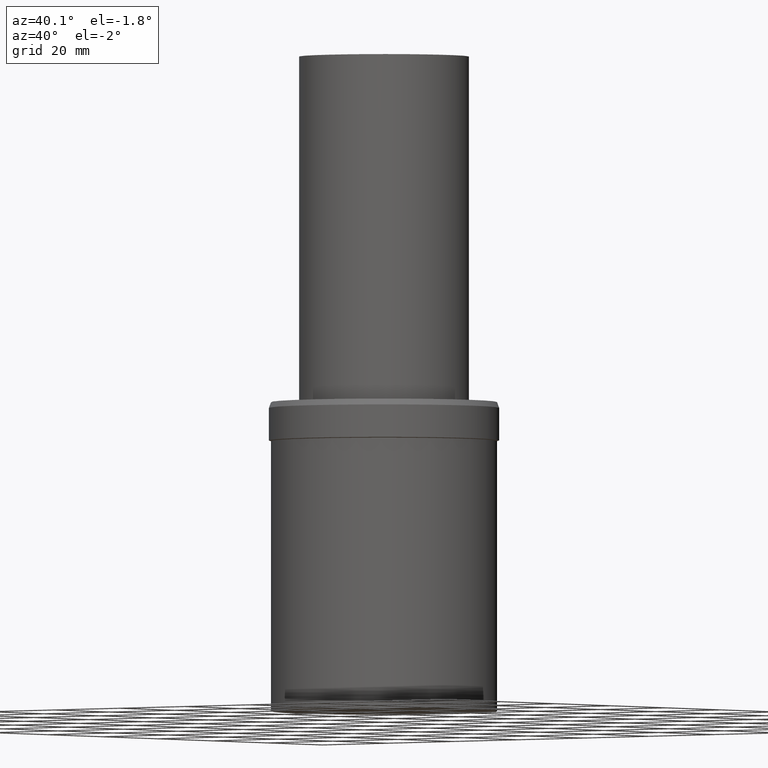
[diagram: clean part render]
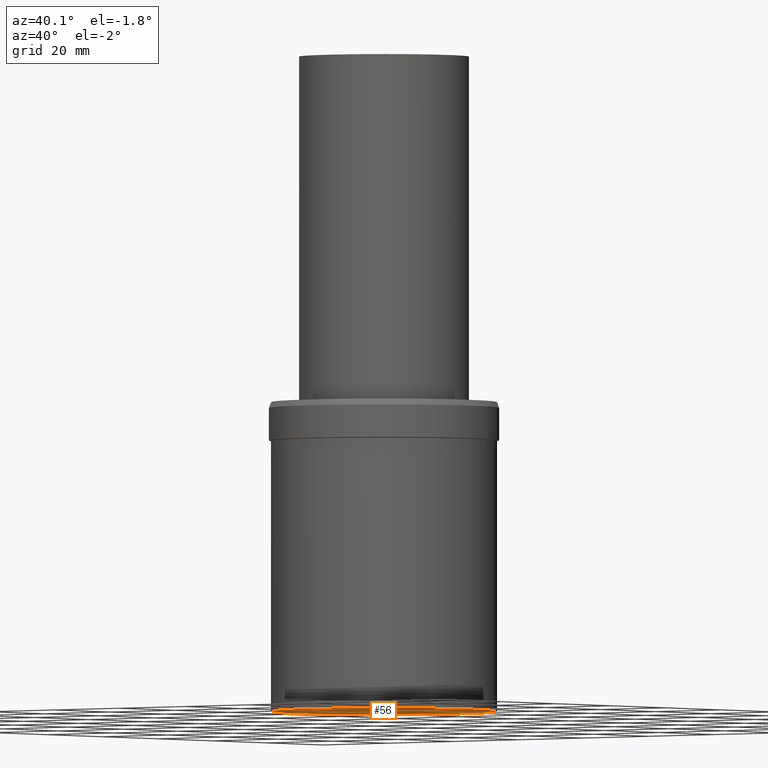
[diagram: same view with one face highlighted and labeled with its STEP entity id]
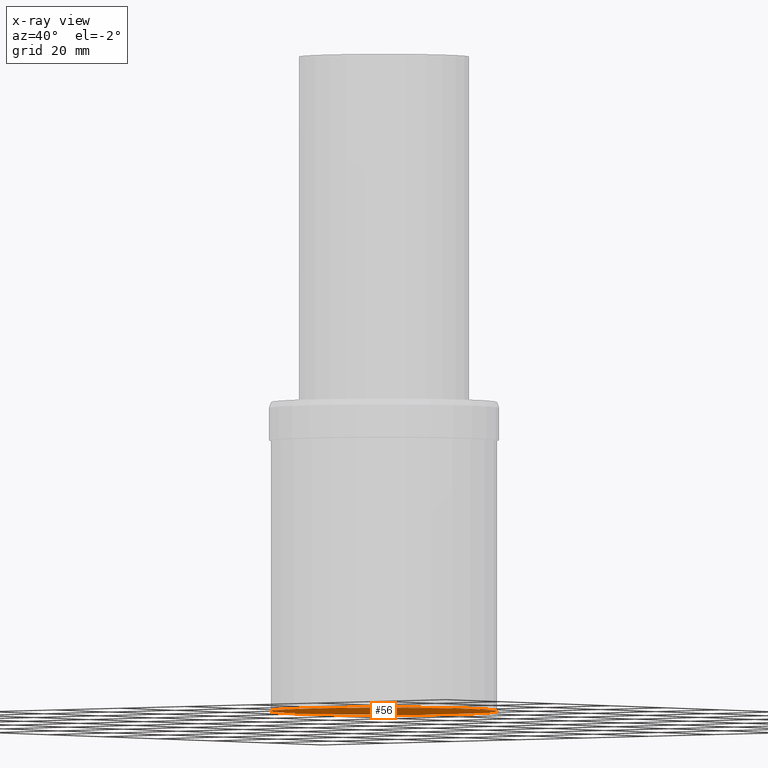
[diagram: x-ray of the same camera — body ghosted, the highlighted face saturated]
A machine part, auxiliary view. The second image highlights one B-rep face of the part: STEP entity #56.
The next image is the same camera in x-ray: the body ghosted, the highlighted face saturated — about 0% of this face is hidden behind the body in this view.
In plain terms, the highlighted planar face has unit normal (0, 0, -1).
Its self-contained STEP definition (entity closure, byte-faithful):
#53=EDGE_CURVE('Unnamed[1]',#118,#118,#119,.T.);
#56=ADVANCED_FACE('Unnamed[1]',(#122),#123,.T.);
#118=VERTEX_POINT('',#192);
#119=CIRCLE('',#193,26.4999999999998);
#122=FACE_OUTER_BOUND('',#197,.T.);
#123=PLANE('',#198);
#192=CARTESIAN_POINT('',(0.0,26.4999999999998,0.0));
#193=AXIS2_PLACEMENT_3D('',#266,#267,#268);
#197=EDGE_LOOP('',(#270));
#198=AXIS2_PLACEMENT_3D('',#271,#272,#273);
#266=CARTESIAN_POINT('',(0.0,0.0,0.0));
#267=DIRECTION('',(6.12323399573677E-017,1.22464679914765E-016,-1.0));
#268=DIRECTION('',(-1.23259516440784E-032,1.0,1.22464679914765E-016));
#270=ORIENTED_EDGE('',*,*,#53,.T.);
#271=CARTESIAN_POINT('',(2.17725609840999E-028,13.2499999999999,-3.5527136788005E-012));
#272=DIRECTION('',(6.12323399573677E-017,2.67983669594762E-013,-1.0));
#273=DIRECTION('',(-1.64140943123801E-029,1.0,2.67983669594762E-013));